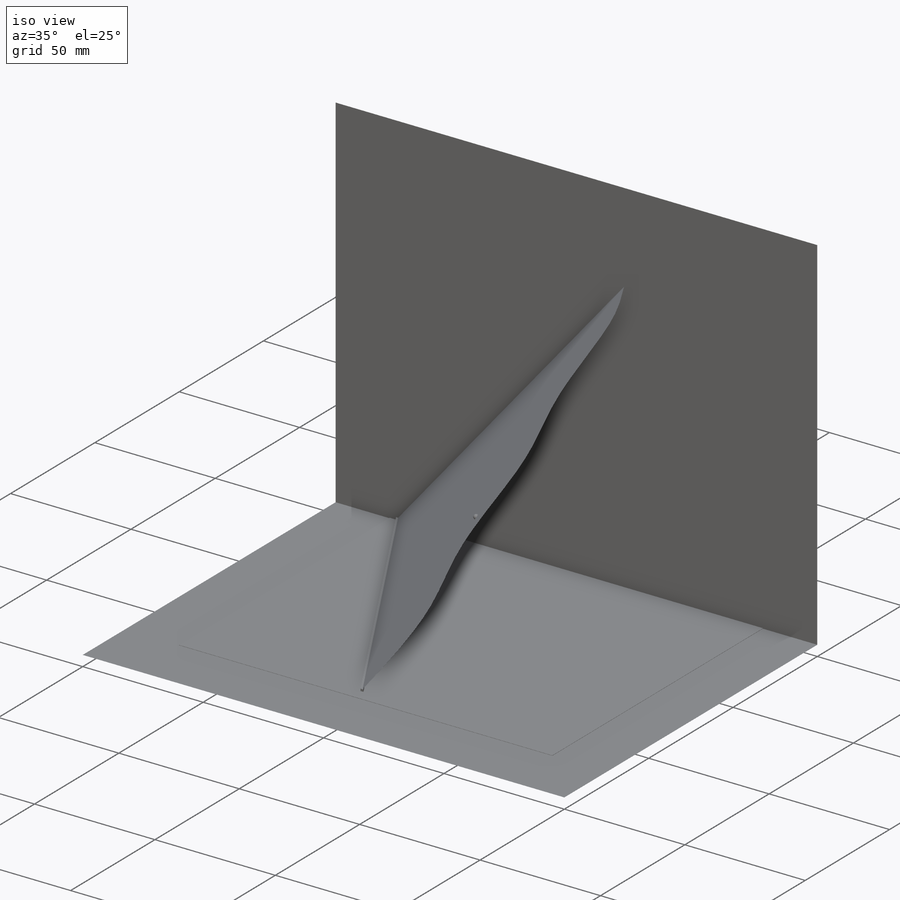
[diagram: iso view]
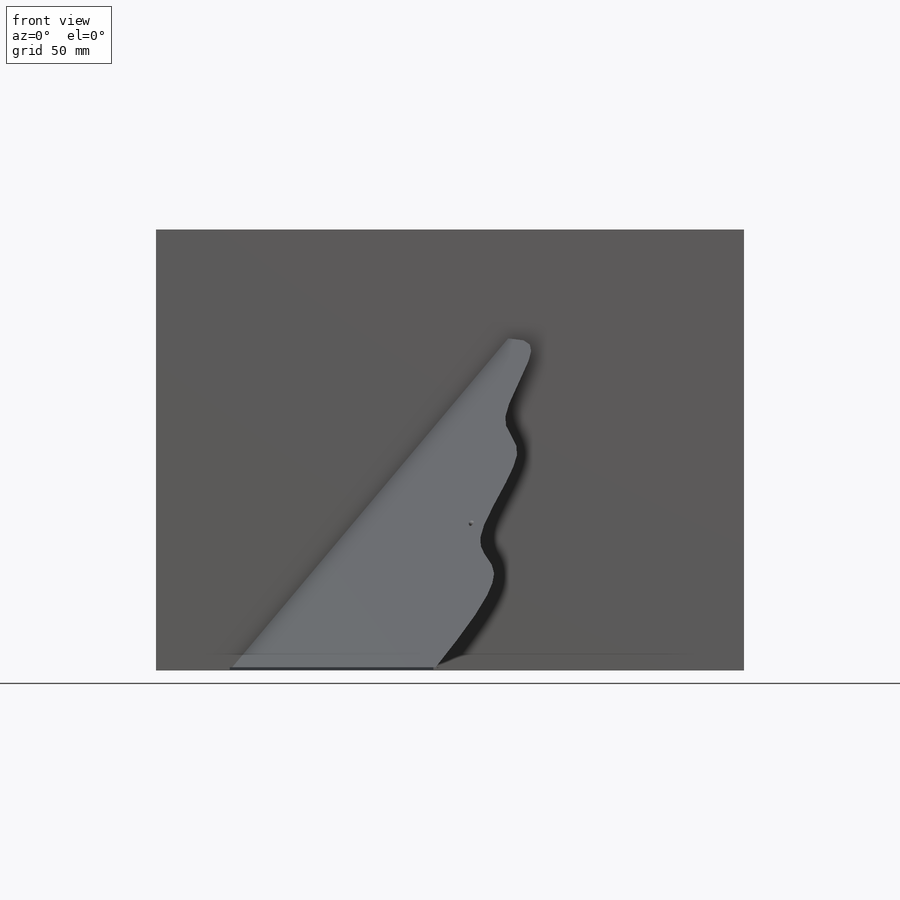
[diagram: front view]
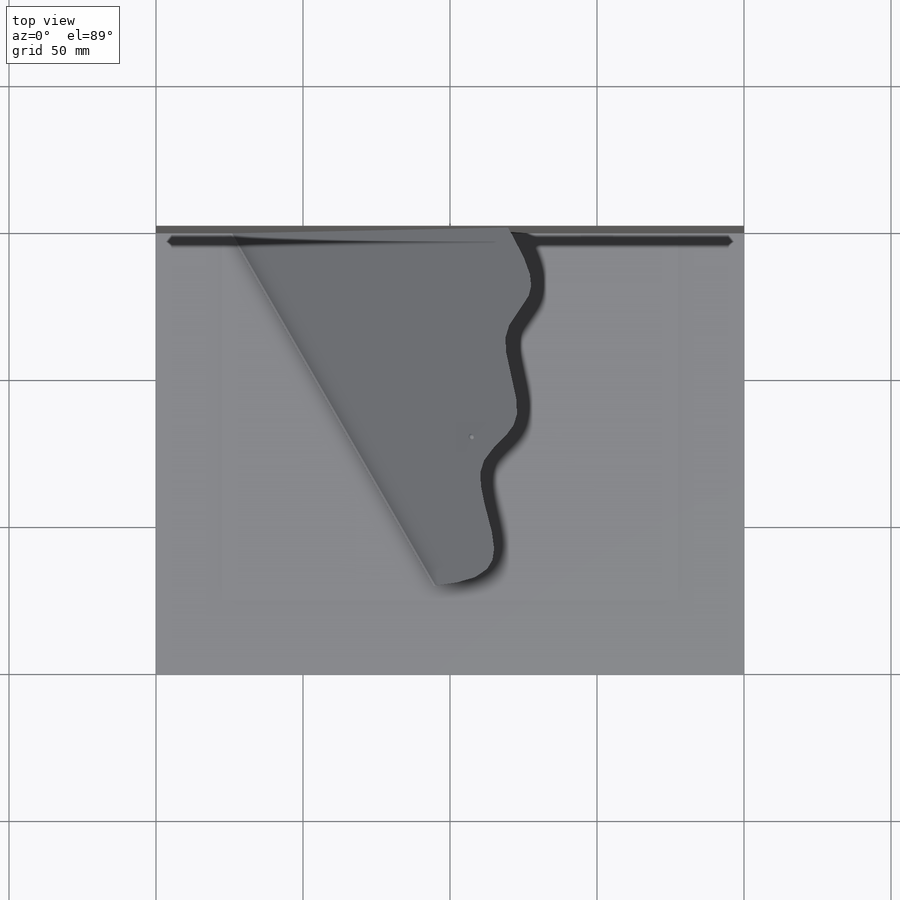
[diagram: top view]
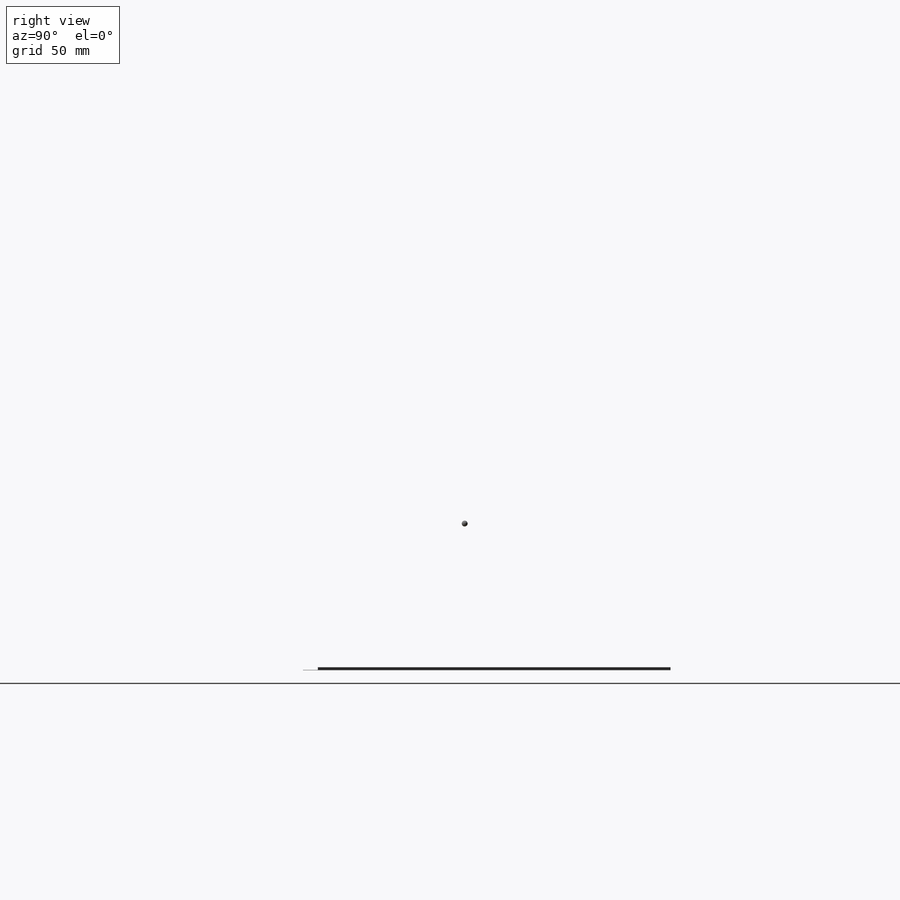
[diagram: right view]
SOLIDWORKS PART (.sldprt)
format: sldprt  version: not decoded by parser v0  size: 349,184 bytes
history: native  units: mm
features: sketch x13, extrude x5, plane x3, material x1, revolve x1 (+13 scaffold rows collapsed)
feature tree (36):
  scaffold x13  (default folders/planes/origin — collapsed)
  material  "Material <not specified>"
  sketch  "Sketch1"  dims[D1=150.0mm D2=200.0mm]
  extrude  "Extrude1"  Depth=0.0001mm
  sketch  "Sketch2"  dims[D1=150.0mm D2=200.0mm]
  extrude  "Extrude2"  Depth=0.0001mm
  sketch  "Sketch3"  dims[c1.D1=~96.708147mm c2.D1=50.0deg c2.D2=25.0mm]
  sketch  "Sketch4"  dims[c1.D1=~55.142379mm c2.D1=60.0deg]
  sketch  "3DSketch1"
  sketch  "Sketch5"
  sketch  "Surface-Fill2"
  plane  "Plane1"  Offset=70mm
  sketch  "Sketch6"  dims[D1=2.0mm]
  revolve  "Revolve1"  Angle=360deg
  plane  "Plane4"  Offset=0.1mm
  sketch  "Sketch8"
  extrude  "Extrude3"  Depth=0.0001mm
  plane  "Plane5"  Offset=0.1mm
  sketch  "Sketch9"
  extrude  "Extrude4"  Depth=0.0001mm
  sketch  "Sketch10"  dims[c1.D1=155.0mm c1.D2=125.0mm c2.D1=0.001mm]
  sketch  "Surface-Fill3"  dims[D1=0.1mm]
  sketch  "Sketch12"  dims[D1=1.0mm]
  extrude  "Extrude6"  Depth=1mm
decode coverage: 14 of 19 modeling features carry decoded parameters
note: ~ marks probable driven/reference dimensions
note: suppression state not decoded; provenance and decode notes live in map.json
